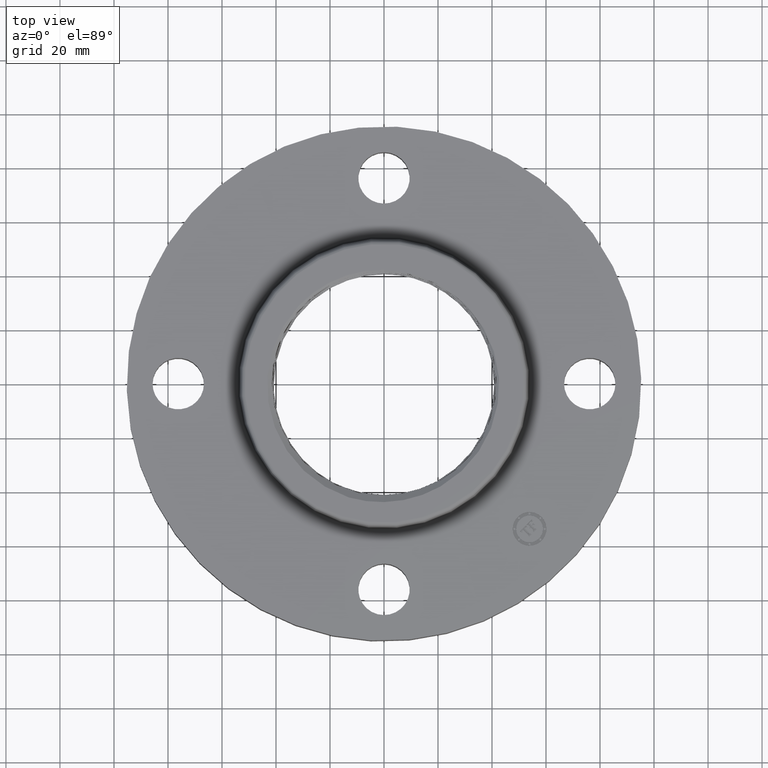
[diagram: clean part render]
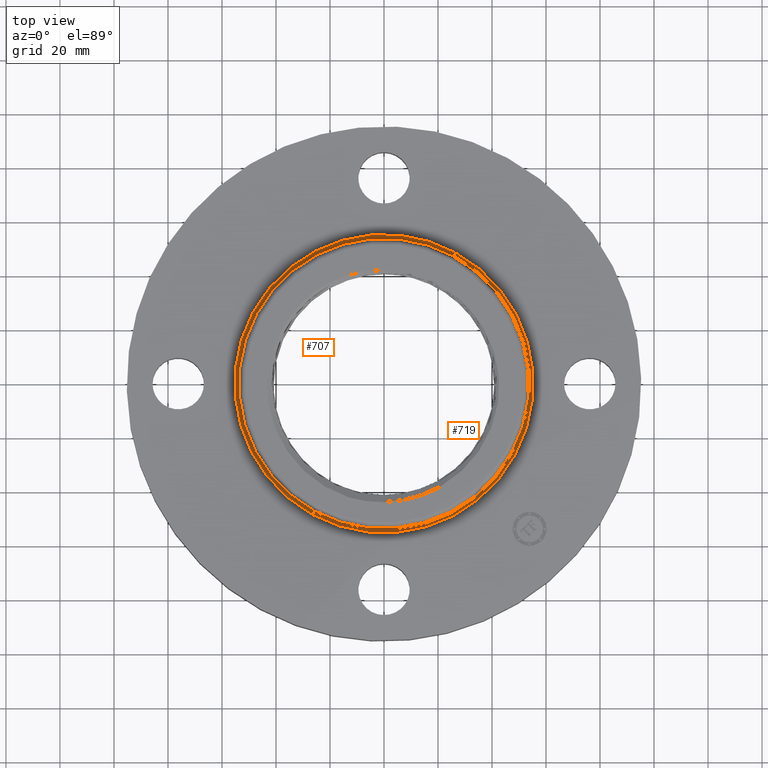
[diagram: same view with one multi-face feature highlighted, each face labeled with its STEP entity id]
A machine part, top view. The highlighted faces form ONE feature: a constant-radius fillet chain: 2 tangent blend faces with common blend radius 1.524 mm. The faces share edges in the B-rep.
Their STEP definitions:
[1] entity #707 (Torus):
#641=AXIS2_PLACEMENT_3D('Circle Axis2P3D',#639,#640,$) ;
#680=AXIS2_PLACEMENT_3D('Torus Axis2P3D',#677,#678,#679) ;
#684=AXIS2_PLACEMENT_3D('Circle Axis2P3D',#682,#683,$) ;
#693=AXIS2_PLACEMENT_3D('Circle Axis2P3D',#691,#692,$) ;
#698=AXIS2_PLACEMENT_3D('Circle Axis2P3D',#696,#697,$) ;
#639=CARTESIAN_POINT('Axis2P3D Location',(0.,0.,0.929581109344)) ;
#643=CARTESIAN_POINT('Vertex',(-1.01458789785,-1.85719068961,0.929581109344)) ;
#645=CARTESIAN_POINT('Vertex',(1.01458789785,1.85719068961,0.929581109344)) ;
#677=CARTESIAN_POINT('Axis2P3D Location',(0.,0.,0.940000000004)) ;
#682=CARTESIAN_POINT('Axis2P3D Location',(0.,0.,0.880000000004)) ;
#686=CARTESIAN_POINT('Vertex',(-1.0429164171,-1.90904569627,0.880000000004)) ;
#688=CARTESIAN_POINT('Vertex',(1.0429164171,1.90904569627,0.880000000004)) ;
#691=CARTESIAN_POINT('Axis2P3D Location',(-1.0429164171,-1.90904569627,0.940000000004)) ;
#696=CARTESIAN_POINT('Axis2P3D Location',(1.0429164171,1.90904569627,0.940000000004)) ;
#640=DIRECTION('Axis2P3D Direction',(0.,0.,-0.0393700787402)) ;
#678=DIRECTION('Axis2P3D Direction',(0.,0.,-0.0393700787402)) ;
#679=DIRECTION('Axis2P3D XDirection',(0.0188750212049,0.0345504945626,0.)) ;
#683=DIRECTION('Axis2P3D Direction',(0.,0.,-0.0393700787402)) ;
#692=DIRECTION('Axis2P3D Direction',(0.0345504945626,-0.0188750212049,0.)) ;
#697=DIRECTION('Axis2P3D Direction',(-0.0345504945626,0.0188750212049,0.)) ;
#702=ORIENTED_EDGE('',*,*,#690,.F.) ;
#703=ORIENTED_EDGE('',*,*,#695,.T.) ;
#704=ORIENTED_EDGE('',*,*,#647,.T.) ;
#705=ORIENTED_EDGE('',*,*,#700,.F.) ;
#707=ADVANCED_FACE('PartBody',(#706),#681,.F.) ;
#642=CIRCLE('generated circle',#641,2.1162575127) ;
#685=CIRCLE('generated circle',#684,2.17534597788) ;
#694=CIRCLE('generated circle',#693,0.0600000000002) ;
#699=CIRCLE('generated circle',#698,0.0600000000002) ;
#681=TOROIDAL_SURFACE('homeo Torus',#680,2.17534597788,0.0600000000002) ;
#647=EDGE_CURVE('',#644,#646,#642,.T.) ;
#690=EDGE_CURVE('',#687,#689,#685,.T.) ;
#695=EDGE_CURVE('',#687,#644,#694,.T.) ;
#700=EDGE_CURVE('',#689,#646,#699,.T.) ;
#701=EDGE_LOOP('',(#702,#703,#704,#705)) ;
#706=FACE_OUTER_BOUND('',#701,.T.) ;
#644=VERTEX_POINT('',#643) ;
#646=VERTEX_POINT('',#645) ;
#687=VERTEX_POINT('',#686) ;
#689=VERTEX_POINT('',#688) ;
[2] entity #719 (Torus):
#667=AXIS2_PLACEMENT_3D('Circle Axis2P3D',#665,#666,$) ;
#680=AXIS2_PLACEMENT_3D('Torus Axis2P3D',#677,#678,#679) ;
#693=AXIS2_PLACEMENT_3D('Circle Axis2P3D',#691,#692,$) ;
#698=AXIS2_PLACEMENT_3D('Circle Axis2P3D',#696,#697,$) ;
#710=AXIS2_PLACEMENT_3D('Circle Axis2P3D',#708,#709,$) ;
#643=CARTESIAN_POINT('Vertex',(-1.01458789785,-1.85719068961,0.929581109344)) ;
#645=CARTESIAN_POINT('Vertex',(1.01458789785,1.85719068961,0.929581109344)) ;
#665=CARTESIAN_POINT('Axis2P3D Location',(0.,0.,0.929581109344)) ;
#677=CARTESIAN_POINT('Axis2P3D Location',(0.,0.,0.940000000004)) ;
#686=CARTESIAN_POINT('Vertex',(-1.0429164171,-1.90904569627,0.880000000004)) ;
#688=CARTESIAN_POINT('Vertex',(1.0429164171,1.90904569627,0.880000000004)) ;
#691=CARTESIAN_POINT('Axis2P3D Location',(-1.0429164171,-1.90904569627,0.940000000004)) ;
#696=CARTESIAN_POINT('Axis2P3D Location',(1.0429164171,1.90904569627,0.940000000004)) ;
#708=CARTESIAN_POINT('Axis2P3D Location',(0.,0.,0.880000000004)) ;
#666=DIRECTION('Axis2P3D Direction',(0.,0.,-0.0393700787402)) ;
#678=DIRECTION('Axis2P3D Direction',(0.,0.,-0.0393700787402)) ;
#679=DIRECTION('Axis2P3D XDirection',(0.0188750212049,0.0345504945626,0.)) ;
#692=DIRECTION('Axis2P3D Direction',(0.0345504945626,-0.0188750212049,0.)) ;
#697=DIRECTION('Axis2P3D Direction',(-0.0345504945626,0.0188750212049,0.)) ;
#709=DIRECTION('Axis2P3D Direction',(0.,0.,-0.0393700787402)) ;
#714=ORIENTED_EDGE('',*,*,#712,.F.) ;
#715=ORIENTED_EDGE('',*,*,#700,.T.) ;
#716=ORIENTED_EDGE('',*,*,#669,.T.) ;
#717=ORIENTED_EDGE('',*,*,#695,.F.) ;
#719=ADVANCED_FACE('PartBody',(#718),#681,.F.) ;
#668=CIRCLE('generated circle',#667,2.1162575127) ;
#694=CIRCLE('generated circle',#693,0.0600000000002) ;
#699=CIRCLE('generated circle',#698,0.0600000000002) ;
#711=CIRCLE('generated circle',#710,2.17534597788) ;
#681=TOROIDAL_SURFACE('homeo Torus',#680,2.17534597788,0.0600000000002) ;
#669=EDGE_CURVE('',#646,#644,#668,.T.) ;
#695=EDGE_CURVE('',#687,#644,#694,.T.) ;
#700=EDGE_CURVE('',#689,#646,#699,.T.) ;
#712=EDGE_CURVE('',#689,#687,#711,.T.) ;
#713=EDGE_LOOP('',(#714,#715,#716,#717)) ;
#718=FACE_OUTER_BOUND('',#713,.T.) ;
#644=VERTEX_POINT('',#643) ;
#646=VERTEX_POINT('',#645) ;
#687=VERTEX_POINT('',#686) ;
#689=VERTEX_POINT('',#688) ;